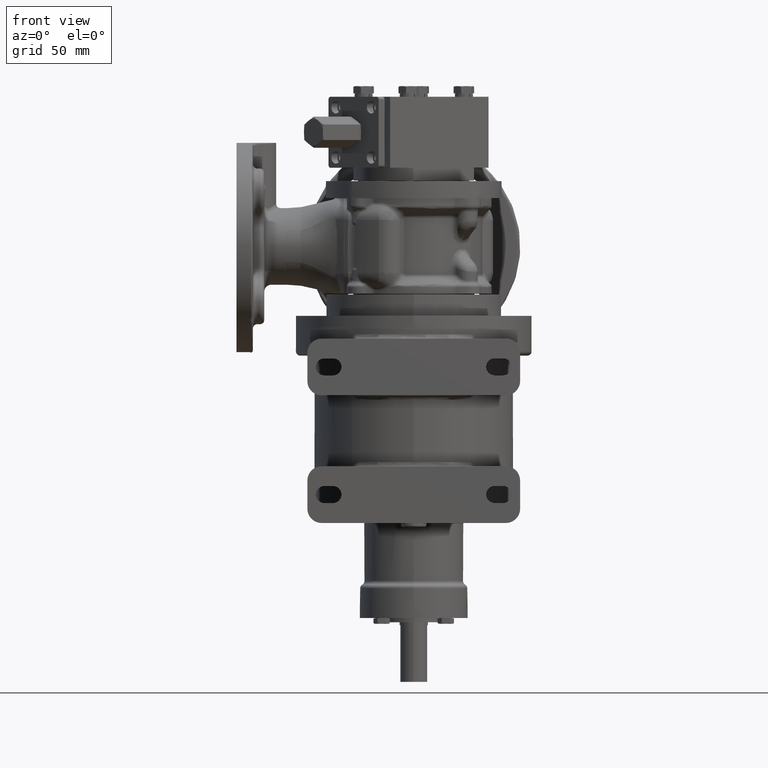
[diagram: clean part render]
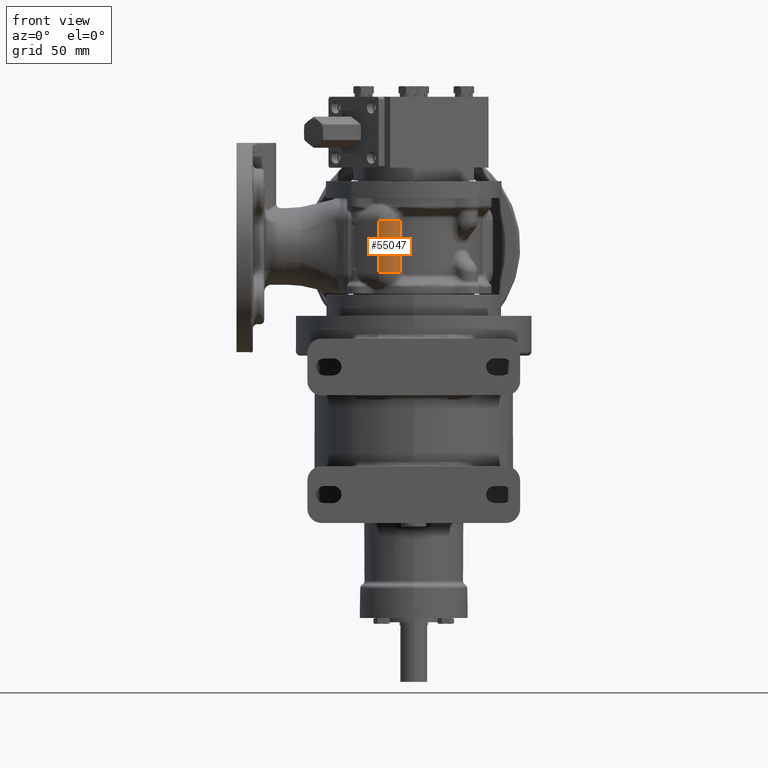
[diagram: same view with one face highlighted and labeled with its STEP entity id]
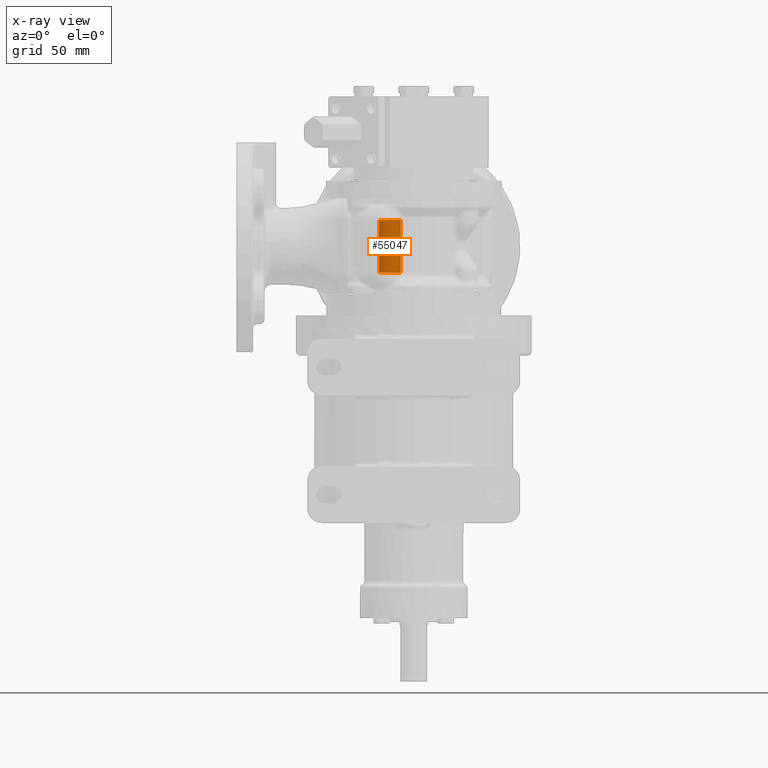
[diagram: x-ray of the same camera — body ghosted, the highlighted face saturated]
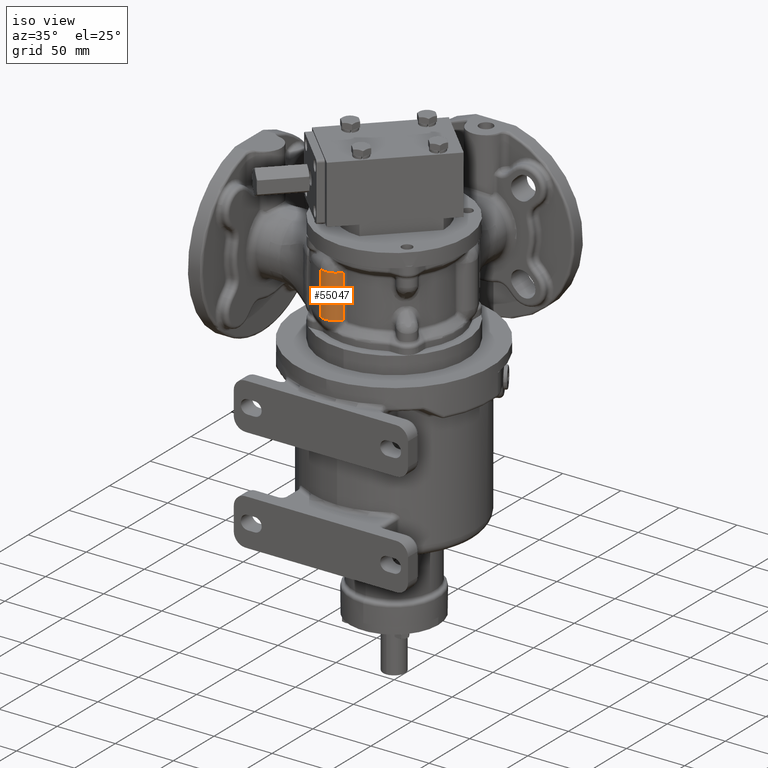
[diagram: same view with one face highlighted and labeled with its STEP entity id]
A machine part, front view. The second image highlights one B-rep face of the part: STEP entity #55047.
The next image is the same camera in x-ray: the body ghosted, the highlighted face saturated — about 0% of this face is hidden behind the body in this view.
A second angle (iso view) of the same face is appended — the face is thin or edge-on in the first view.
In plain terms, the highlighted cylindrical surface (edge-blend (fillet) strip) has radius 12 mm, axis along (0, 0, -1).
Its self-contained STEP definition (entity closure, byte-faithful):
#8139=DIRECTION('',(-2.439331240488E-10,1.698696509105E-10,1.E0));
#8140=VECTOR('',#8139,3.699999846796E1);
#8141=CARTESIAN_POINT('',(-9.280891847036E0,-4.960307486854E1,
1.565000007587E2));
#8142=LINE('',#8141,#8140);
#8143=CARTESIAN_POINT('',(-1.975467231418E1,-4.374646181989E1,
1.565000000201E2));
#8144=DIRECTION('',(0.E0,0.E0,-1.E0));
#8145=DIRECTION('',(8.728150556319E-1,-4.880511025111E-1,0.E0));
#8146=AXIS2_PLACEMENT_3D('',#8143,#8144,#8145);
#8148=CARTESIAN_POINT('',(-1.975467231418E1,-4.374646181989E1,
1.934999999794E2));
#8149=DIRECTION('',(0.E0,0.E0,1.E0));
#8150=DIRECTION('',(-4.115556732121E-1,-9.113846212478E-1,0.E0));
#8151=AXIS2_PLACEMENT_3D('',#8148,#8149,#8150);
#8162=DIRECTION('',(-9.197159550471E-11,-2.036699697785E-10,-1.E0));
#8163=VECTOR('',#8162,3.699999999996E1);
#8164=CARTESIAN_POINT('',(-2.469334031006E1,-5.468307709181E1,1.935E2));
#8165=LINE('',#8164,#8163);
#33449=CARTESIAN_POINT('',(-9.280891847036E0,-4.960307486854E1,
1.565000007587E2));
#33450=CARTESIAN_POINT('',(-9.280891856062E0,-4.960307486226E1,
1.934999992266E2));
#33451=VERTEX_POINT('',#33449);
#33452=VERTEX_POINT('',#33450);
#33965=CARTESIAN_POINT('',(-2.469334031006E1,-5.468307709181E1,1.935E2));
#33966=CARTESIAN_POINT('',(-2.469334031347E1,-5.468307709934E1,1.565E2));
#33967=VERTEX_POINT('',#33965);
#33968=VERTEX_POINT('',#33966);
#55034=CARTESIAN_POINT('',(-1.975467231418E1,-4.374646181989E1,4.4554E2));
#55035=DIRECTION('',(0.E0,0.E0,-1.E0));
#55036=DIRECTION('',(9.815732755646E-1,1.910861185364E-1,0.E0));
#55037=AXIS2_PLACEMENT_3D('',#55034,#55035,#55036);
#55038=CYLINDRICAL_SURFACE('',#55037,1.2E1);
#55039=ORIENTED_EDGE('',*,*,#54744,.F.);
#55040=ORIENTED_EDGE('',*,*,#55028,.T.);
#55042=ORIENTED_EDGE('',*,*,#55041,.F.);
#55044=ORIENTED_EDGE('',*,*,#55043,.T.);
#55045=EDGE_LOOP('',(#55039,#55040,#55042,#55044));
#55046=FACE_OUTER_BOUND('',#55045,.F.);
#55047=ADVANCED_FACE('',(#55046),#55038,.T.);
#8147=CIRCLE('',#8146,1.2E1);
#8152=CIRCLE('',#8151,1.2E1);
#54744=EDGE_CURVE('',#33451,#33452,#8142,.T.);
#55028=EDGE_CURVE('',#33451,#33968,#8147,.T.);
#55041=EDGE_CURVE('',#33967,#33968,#8165,.T.);
#55043=EDGE_CURVE('',#33967,#33452,#8152,.T.);